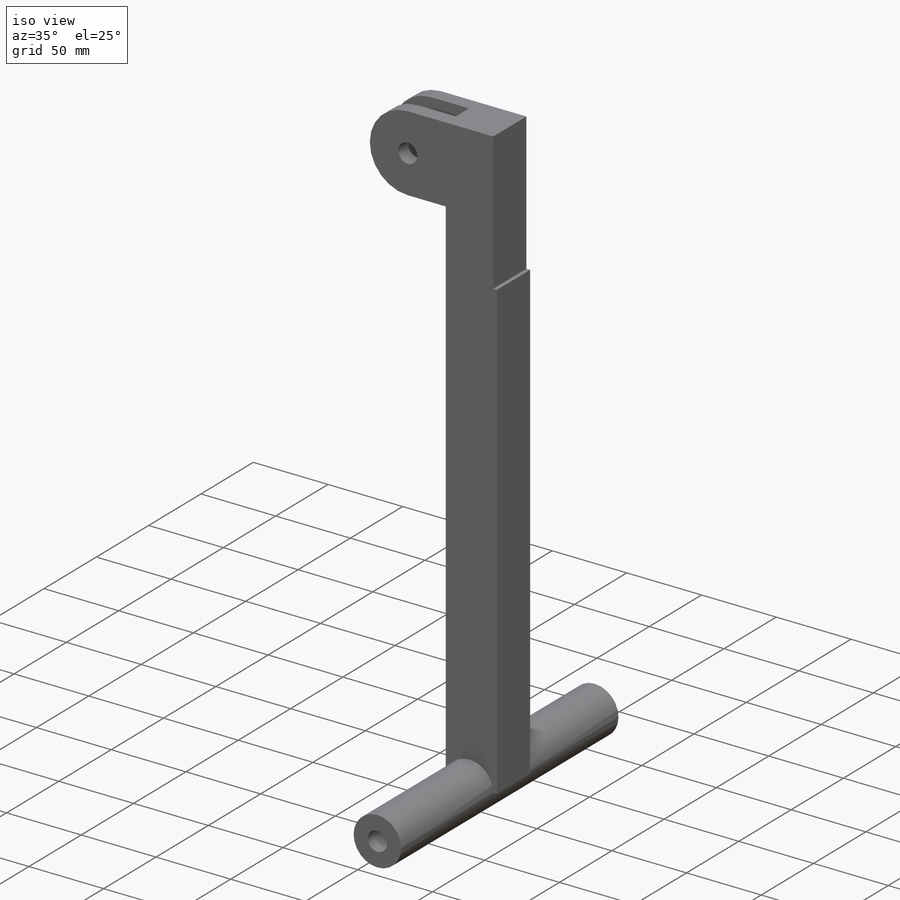
[diagram: iso view]
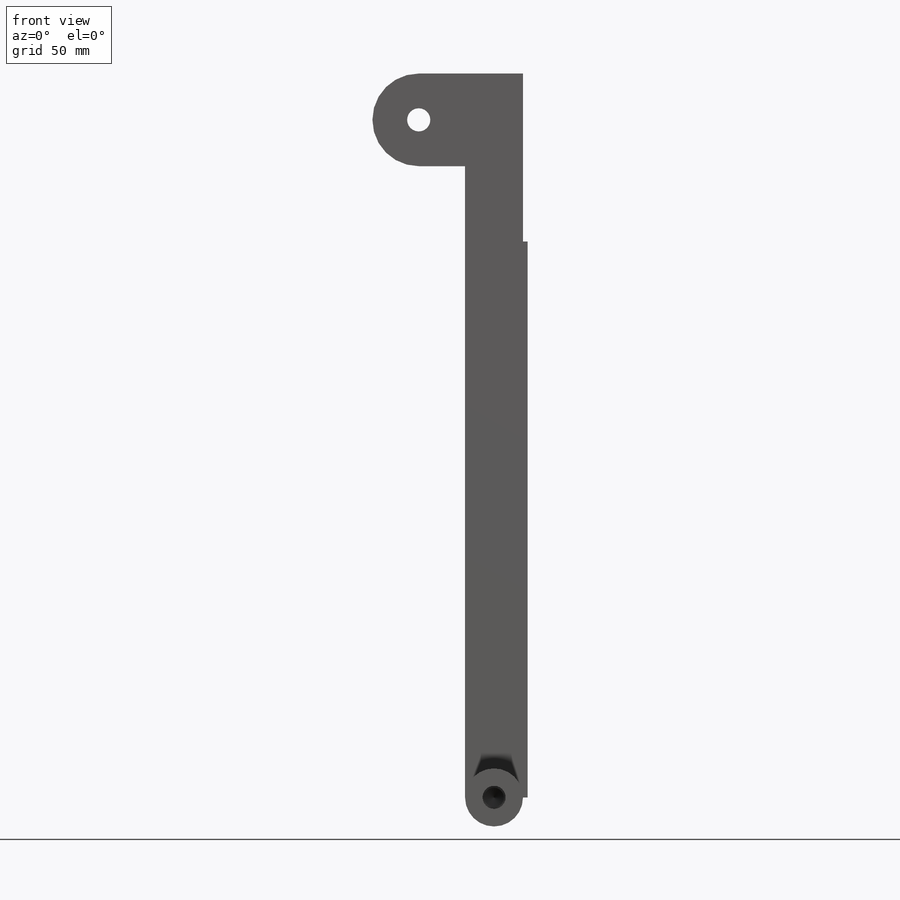
[diagram: front view]
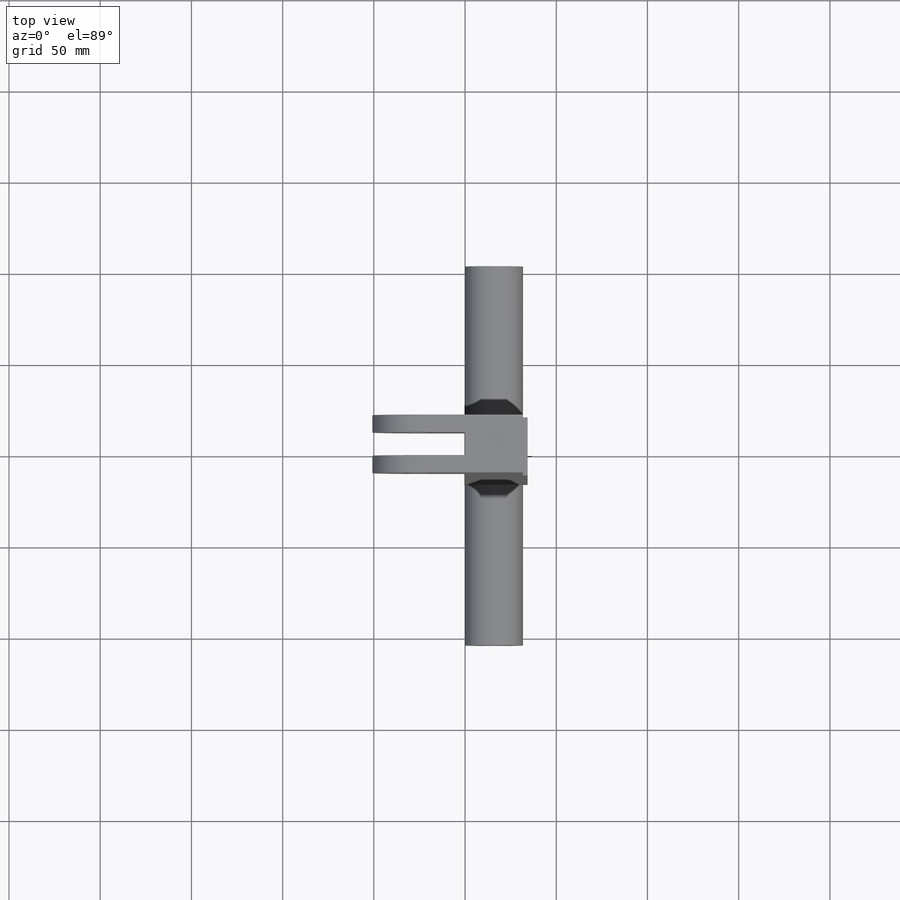
[diagram: top view]
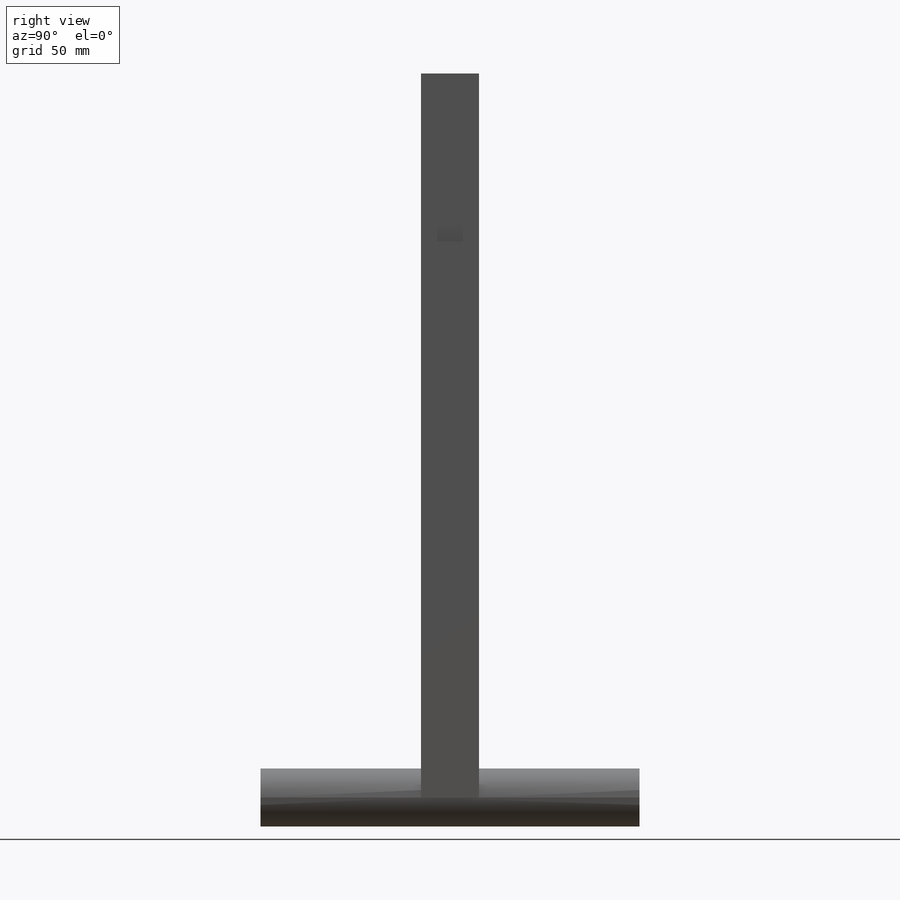
[diagram: right view]
SOLIDWORKS PART (.sldprt)
format: sldprt  version: not decoded by parser v0  size: 306,688 bytes
history: native  units: mm
features: sketch x8, extrude x4, hole x2, fillet x2, material x1, shell x1 (+14 scaffold rows collapsed)
feature tree (32):
  scaffold x14  (default folders/planes/origin — collapsed)
  material  "6061 Alloy"
  sketch  "Sketch3"  dims[D1=207.772mm D2=31.75mm]
  extrude  "Extrude2"  Depth=31.75mm
  hole  "1/2-13 Tapped Hole2"  Diameter=10.71626mm Depth=35.052mm
  sketch  "3DSketch2"  dims[D1=15.875mm D2=15.875mm D3=15.875mm D4=15.875mm]
  sketch  "Sketch4"  dims[hole-wizard template sketch: 29 standard entries collapsed; hole parameters kept: c8.Tap Drill Depth=35.052mm c8.Thread Major Dia.=12.7mm c8.Thread Depth=25.4mm c8.D5=~14.816244mm c8.Drill Angle=118.0deg]
  sketch  "Sketch5"  dims[D1=31.75mm D2=31.75mm D3=15.875mm]
  extrude  "Extrude3"  Depth=381mm
  fillet  "Fillet2"  Radius=15.875mm
  sketch  "Sketch6"  dims[c1.D1=12.7mm c1.D2=15.875mm c1.D3=6.35mm c2.D2=15.875mm c2.D3=355.6mm c2.D4=50.8mm]
  extrude  "Extrude4"  Depth=50.8mm
  fillet  "Fillet3"  Radius=25.4mm
  hole  "1/2 (0.5) Diameter Hole1"  Diameter=12.7mm Depth=12.7mm
  sketch  "3DSketch3"
  sketch  "Sketch7"  dims[hole-wizard template sketch: 47 standard entries collapsed; hole parameters kept: c15.Hole Depth=12.7mm c15.D3=~14.816244mm c15.Drill Angle=118.0deg]
  shell  "Shell1"  Thickness=2.54mm
  sketch  "Sketch8"  dims[D1=304.8mm]
  extrude  "Extrude5"  Depth=2.54mm faceID=34
decode coverage: 16 of 17 modeling features carry decoded parameters
note: ~ marks probable driven/reference dimensions
note: suppression state not decoded; provenance and decode notes live in map.json
